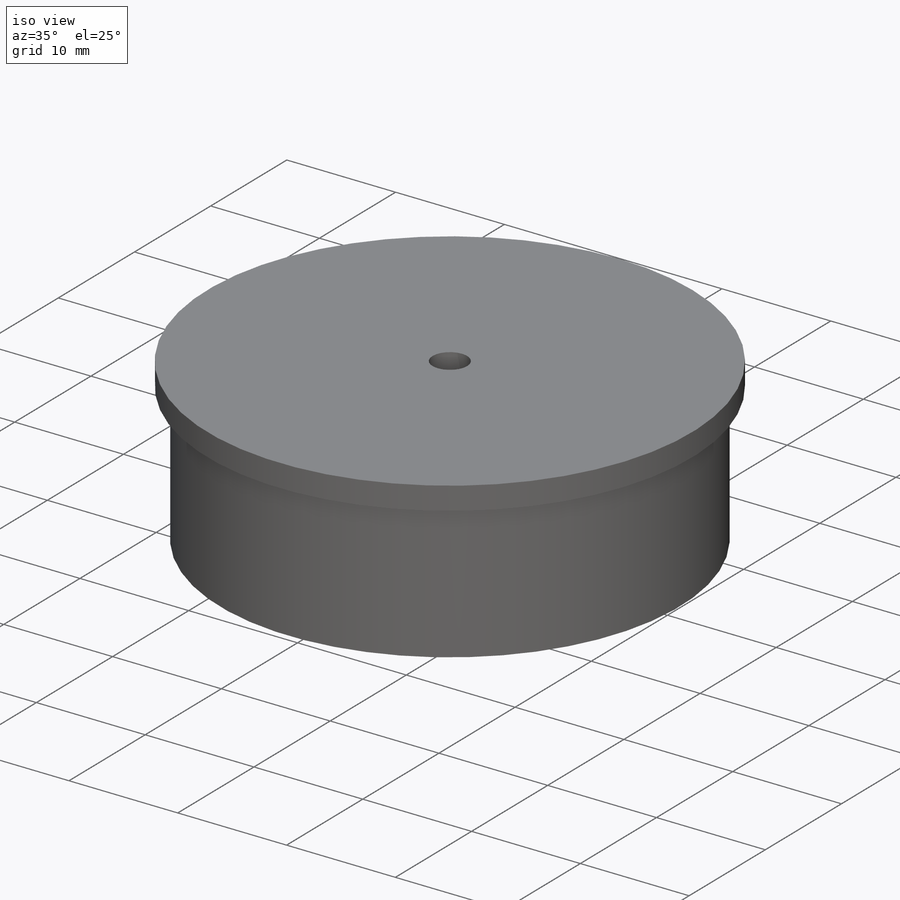
[diagram: iso view]
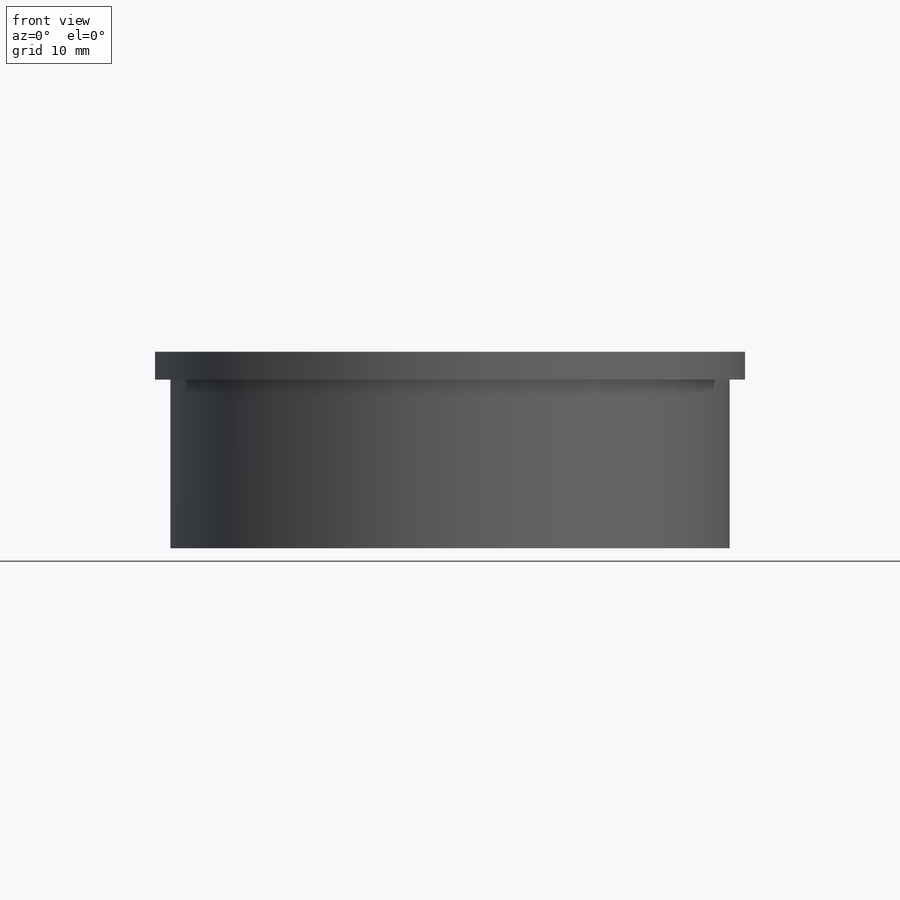
[diagram: front view]
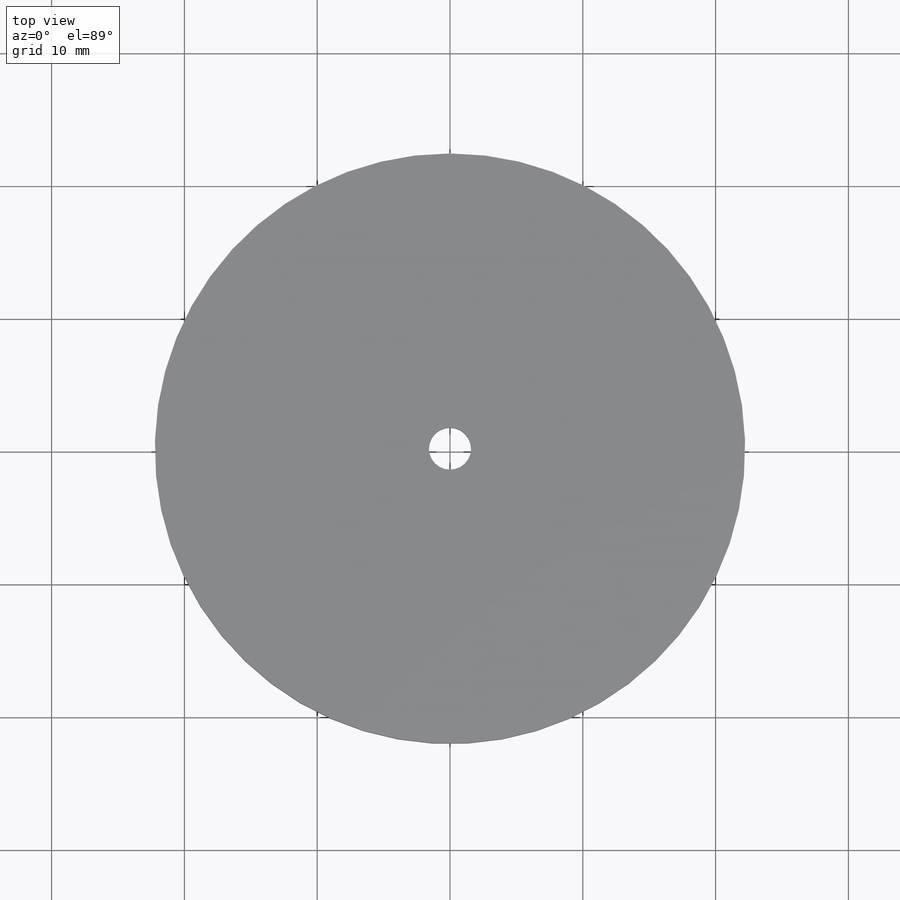
[diagram: top view]
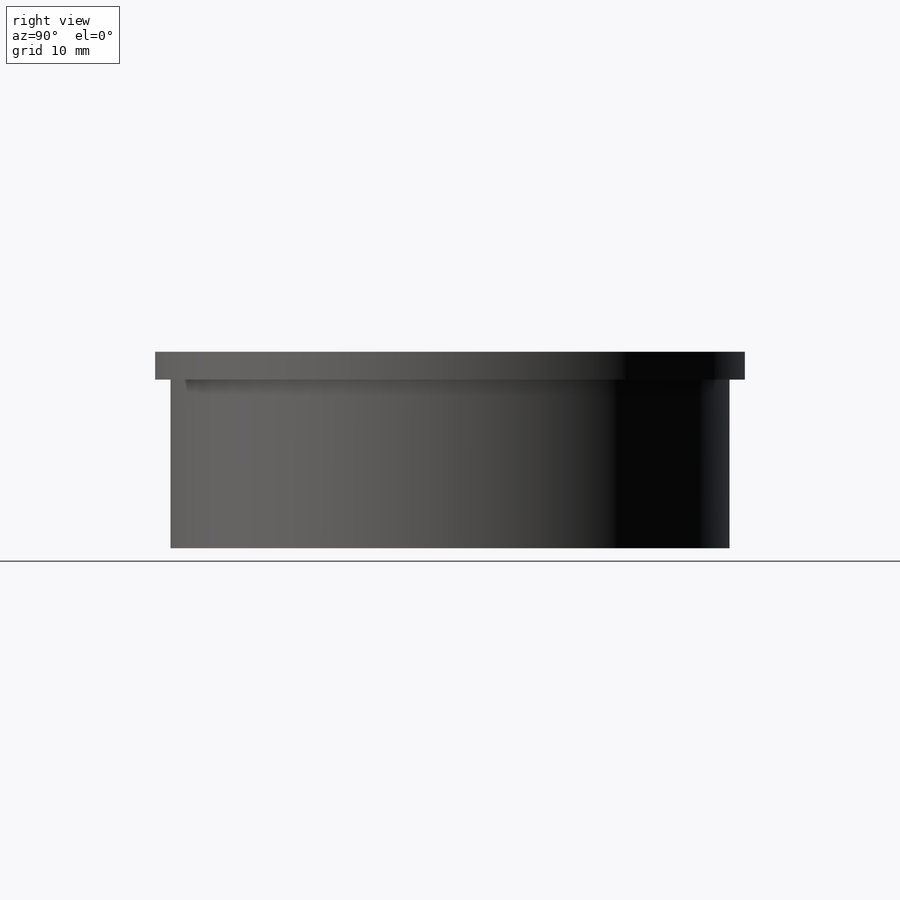
[diagram: right view]
SOLIDWORKS PART (.sldprt)
format: sldprt  version: not decoded by parser v0  size: 218,624 bytes
history: native  units: mm
features: sketch x3, material x1, revolve x1, plane x1, sweep x1, fillet x1, mirror x1 (+16 scaffold rows collapsed)
feature tree (25):
  scaffold x16  (default folders/planes/origin — collapsed)
  material  "Material <not specified>"
  sketch  "Sketch1"  dims[c1.D4=2.54mm c1.D1=44.45mm c1.D2=42.1386mm c1.D3=3.175mm c1.D5=12.7mm c1.D6=1.0414mm c1.D7=2.1mm c2.D1=44.45mm c2.D2=42.1386mm]
  revolve  "Revolve1"  Angle=360deg
  plane  "Plane1"  Offset=9.525mm
  sketch  "Sketch2"  dims[D1=1.5875mm]
  sketch  "Sketch3"  dims[D1=4.7625mm]
  sweep  "Sweep1"
  fillet  "Fillet1"  Radius=1.27mm
  mirror  "Mirror1"
decode coverage: 5 of 7 modeling features carry decoded parameters
note: suppression state not decoded; provenance and decode notes live in map.json
